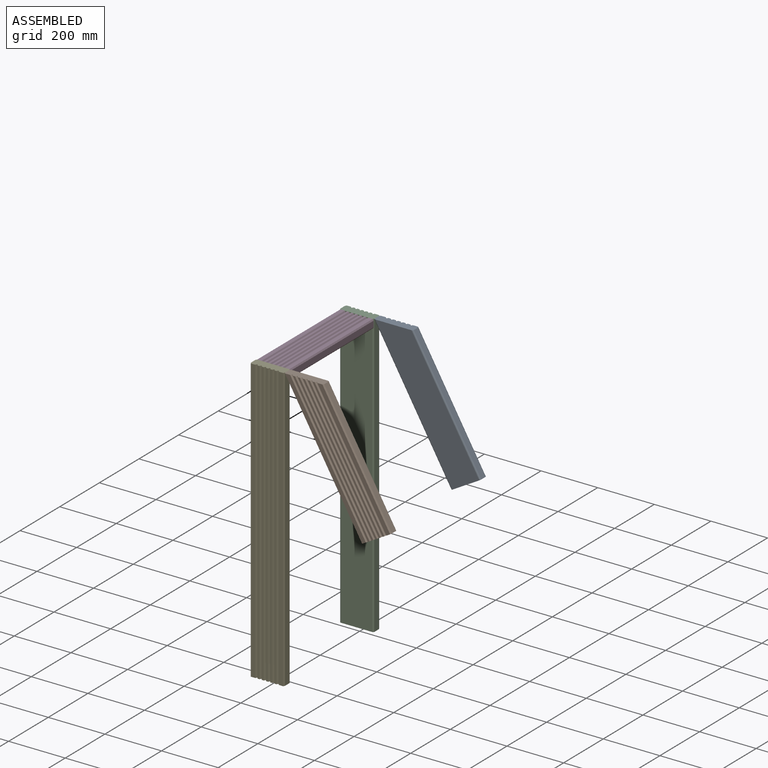
[diagram: assembled view]
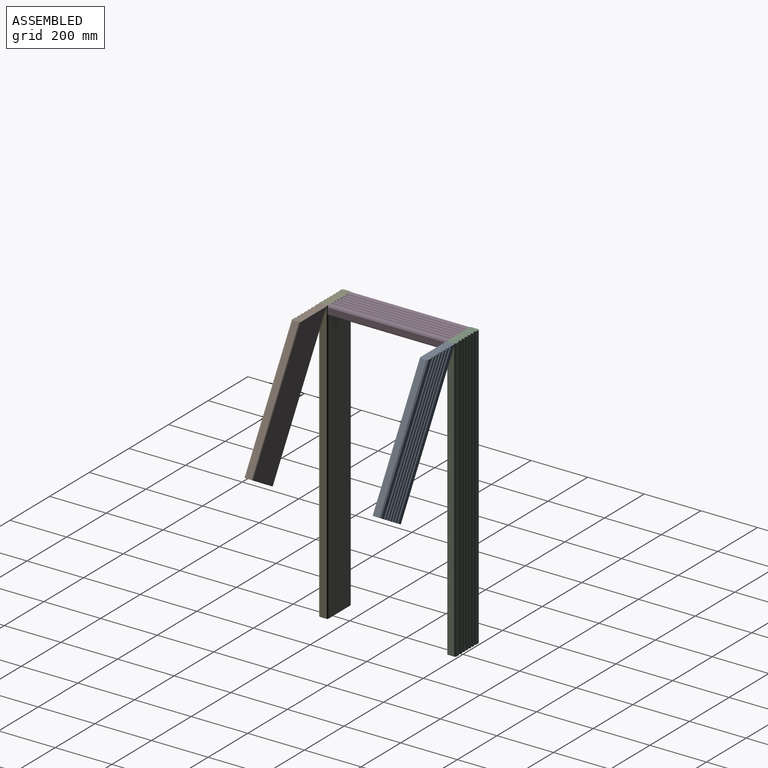
[diagram: assembled view, second angle]
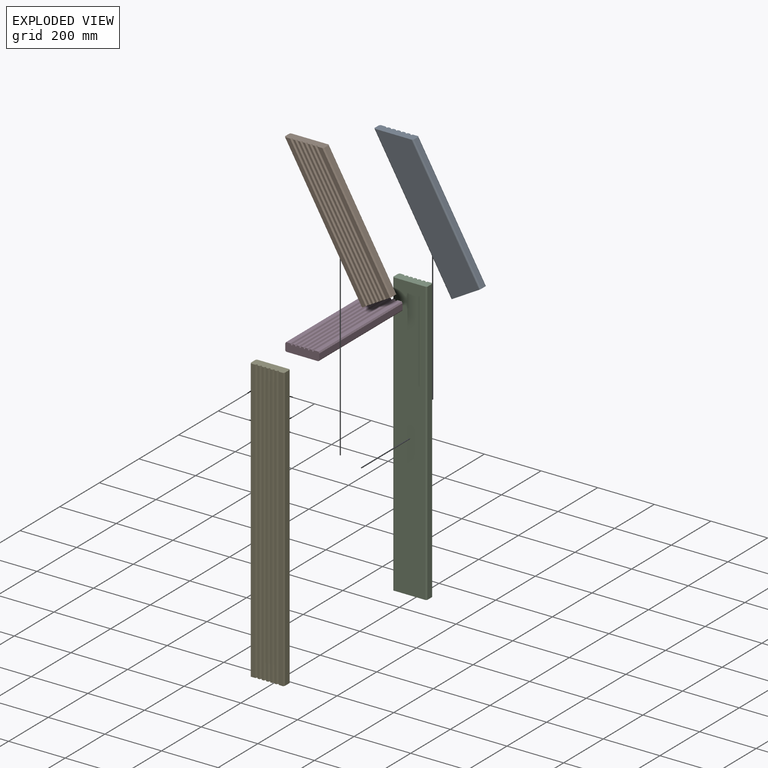
[diagram: exploded view]
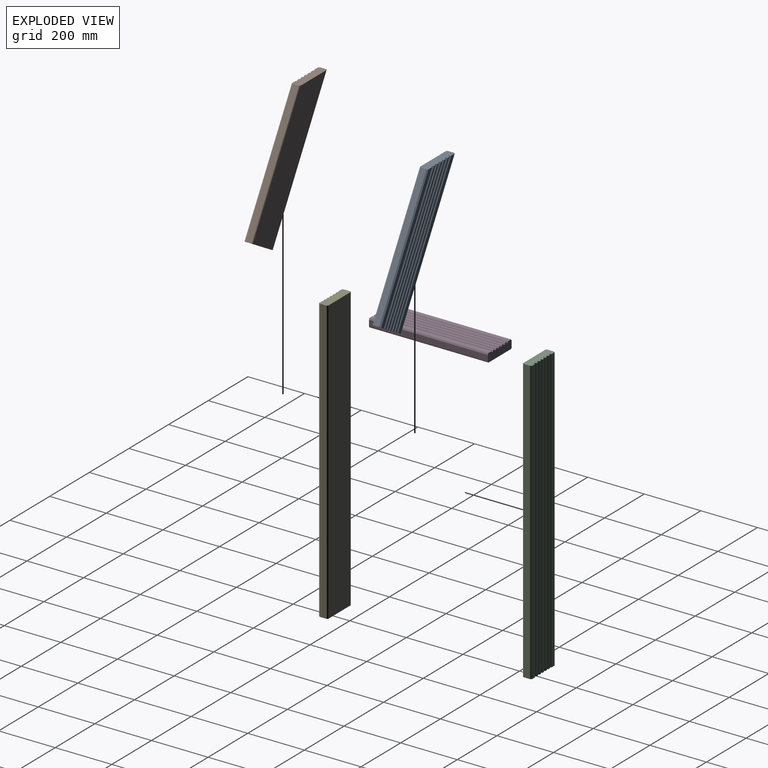
[diagram: exploded view, second angle]
ASSEMBLY  parts=5 mates=4
PART A: 34 faces, bbox 120x30.7x546.1 mm
  f0: plane 476.82x20.65mm, normal (1,0,0), area 9846.3mm2, adj f12,f13,f32,f33
  f1: cylinder r=2mm len=525.45mm, axis (0,0,-1), area 2196.8mm2, adj f2,f31,f32,f33
  f2: plane 526.78x4mm, normal (0.87,0.5,0), area 2430mm2, adj f1,f3,f32,f33
  f3: plane 530.78x6.92mm, normal (0,1,0), area 3657.6mm2, adj f2,f4,f32,f33
  f4: plane 532.11x4mm, normal (-0.87,0.5,0), area 2454.6mm2, adj f3,f5,f32,f33
  f5: cylinder r=2mm len=534.11mm, axis (0,0,-1), area 2233.1mm2, adj f4,f6,f32,f33
  f6: plane 535.44x4mm, normal (0.87,0.5,0), area 2470mm2, adj f5,f7,f32,f33
  f7: plane 544.43x15.57mm, normal (0,1,0), area 8407.8mm2, adj f6,f8,f32,f33
  f8: plane 546.1x5mm, normal (-0.87,0.5,0), area 3148.1mm2, adj f7,f9,f32,f33
  f9: plane 546.1x20.65mm, normal (-1,0,0), area 11277mm2, adj f8,f10,f32,f33
  f10: cylinder r=5mm len=546.1mm, axis (0,0,-1), area 4280.8mm2, adj f9,f11,f32,f33
  f11: plane 543.21x110mm, normal (0,-1,0), area 56260.5mm2, adj f10,f12,f32,f33
  f12: cylinder r=5mm len=479.7mm, axis (0,0,-1), area 3753.2mm2, adj f0,f11,f32,f33
  f13: plane 478.48x5mm, normal (0.87,0.5,0), area 2757.7mm2, adj f0,f14,f32,f33
  f14: plane 487.48x15.57mm, normal (0,1,0), area 7520.9mm2, adj f13,f15,f32,f33
  f15: plane 488.81x4mm, normal (-0.87,0.5,0), area 2254.6mm2, adj f14,f16,f32,f33
  f16: cylinder r=2mm len=490.81mm, axis (0,0,-1), area 2051.7mm2, adj f15,f17,f32,f33
  f17: plane 492.14x4mm, normal (0.87,0.5,0), area 2270mm2, adj f16,f18,f32,f33
  f18: plane 496.14x6.92mm, normal (0,1,0), area 3418mm2, adj f17,f19,f32,f33
  f19: plane 497.47x4mm, normal (-0.87,0.5,0), area 2294.6mm2, adj f18,f20,f32,f33
  f20: cylinder r=2mm len=499.47mm, axis (0,0,-1), area 2088mm2, adj f19,f21,f32,f33
  f21: plane 500.8x4mm, normal (0.87,0.5,0), area 2310mm2, adj f20,f22,f32,f33
  f22: plane 504.8x6.92mm, normal (0,1,0), area 3477.9mm2, adj f21,f23,f32,f33
  f23: plane 506.13x4mm, normal (-0.87,0.5,0), area 2334.6mm2, adj f22,f24,f32,f33
  f24: cylinder r=2mm len=508.13mm, axis (0,0,-1), area 2124.3mm2, adj f23,f25,f32,f33
  f25: plane 509.46x4mm, normal (0.87,0.5,0), area 2350mm2, adj f24,f26,f32,f33
  f26: plane 513.46x6.92mm, normal (0,1,0), area 3537.8mm2, adj f25,f27,f32,f33
  f27: plane 514.79x4mm, normal (-0.87,0.5,0), area 2374.6mm2, adj f26,f28,f32,f33
  f28: cylinder r=2mm len=516.79mm, axis (0,0,-1), area 2160.5mm2, adj f27,f29,f32,f33
  f29: plane 518.12x4mm, normal (0.87,0.5,0), area 2390mm2, adj f28,f30,f32,f33
  f30: plane 522.12x6.92mm, normal (0,1,0), area 3597.7mm2, adj f29,f31,f32,f33
  f31: plane 523.45x4mm, normal (-0.87,0.5,0), area 2414.6mm2, adj f1,f30,f32,f33
  f32: plane 120x30.65mm, normal (0,0,-1), area 3499.5mm2, adj f0,f1,f2,f3,f4,f5,f6,f7
  f33: plane 120x69.28mm, normal (0.5,0,0.87), area 4040.9mm2, adj f0,f1,f2,f3,f4,f5,f6,f7
PART B: 34 faces, bbox 120x30.7x546.1 mm
  f0: plane 476.82x20.65mm, normal (1,0,0), area 9846.3mm2, adj f12,f13,f32,f33
  f1: cylinder r=2mm len=525.45mm, axis (0,0,-1), area 2196.8mm2, adj f2,f31,f32,f33
  f2: plane 526.78x4mm, normal (0.87,-0.5,0), area 2430mm2, adj f1,f3,f32,f33
  f3: plane 530.78x6.92mm, normal (0,-1,0), area 3657.6mm2, adj f2,f4,f32,f33
  f4: plane 532.11x4mm, normal (-0.87,-0.5,0), area 2454.6mm2, adj f3,f5,f32,f33
  f5: cylinder r=2mm len=534.11mm, axis (0,0,-1), area 2233.1mm2, adj f4,f6,f32,f33
  f6: plane 535.44x4mm, normal (0.87,-0.5,0), area 2470mm2, adj f5,f7,f32,f33
  f7: plane 544.43x15.57mm, normal (0,-1,0), area 8407.8mm2, adj f6,f8,f32,f33
  f8: plane 546.1x5mm, normal (-0.87,-0.5,0), area 3148.1mm2, adj f7,f9,f32,f33
  f9: plane 546.1x20.65mm, normal (-1,0,0), area 11277mm2, adj f8,f10,f32,f33
  f10: cylinder r=5mm len=546.1mm, axis (0,0,-1), area 4280.8mm2, adj f9,f11,f32,f33
  f11: plane 543.21x110mm, normal (0,1,0), area 56260.5mm2, adj f10,f12,f32,f33
  f12: cylinder r=5mm len=479.7mm, axis (0,0,-1), area 3753.2mm2, adj f0,f11,f32,f33
  f13: plane 478.48x5mm, normal (0.87,-0.5,0), area 2757.7mm2, adj f0,f14,f32,f33
  f14: plane 487.48x15.57mm, normal (0,-1,0), area 7520.9mm2, adj f13,f15,f32,f33
  f15: plane 488.81x4mm, normal (-0.87,-0.5,0), area 2254.6mm2, adj f14,f16,f32,f33
  f16: cylinder r=2mm len=490.81mm, axis (0,0,-1), area 2051.7mm2, adj f15,f17,f32,f33
  f17: plane 492.14x4mm, normal (0.87,-0.5,0), area 2270mm2, adj f16,f18,f32,f33
  f18: plane 496.14x6.92mm, normal (0,-1,0), area 3418mm2, adj f17,f19,f32,f33
  f19: plane 497.47x4mm, normal (-0.87,-0.5,0), area 2294.6mm2, adj f18,f20,f32,f33
  f20: cylinder r=2mm len=499.47mm, axis (0,0,-1), area 2088mm2, adj f19,f21,f32,f33
  f21: plane 500.8x4mm, normal (0.87,-0.5,0), area 2310mm2, adj f20,f22,f32,f33
  f22: plane 504.8x6.92mm, normal (0,-1,0), area 3477.9mm2, adj f21,f23,f32,f33
  f23: plane 506.13x4mm, normal (-0.87,-0.5,0), area 2334.6mm2, adj f22,f24,f32,f33
  f24: cylinder r=2mm len=508.13mm, axis (0,0,-1), area 2124.3mm2, adj f23,f25,f32,f33
  f25: plane 509.46x4mm, normal (0.87,-0.5,0), area 2350mm2, adj f24,f26,f32,f33
  f26: plane 513.46x6.92mm, normal (0,-1,0), area 3537.8mm2, adj f25,f27,f32,f33
  f27: plane 514.79x4mm, normal (-0.87,-0.5,0), area 2374.6mm2, adj f26,f28,f32,f33
  f28: cylinder r=2mm len=516.79mm, axis (0,0,-1), area 2160.5mm2, adj f27,f29,f32,f33
  f29: plane 518.12x4mm, normal (0.87,-0.5,0), area 2390mm2, adj f28,f30,f32,f33
  f30: plane 522.12x6.92mm, normal (0,-1,0), area 3597.7mm2, adj f29,f31,f32,f33
  f31: plane 523.45x4mm, normal (-0.87,-0.5,0), area 2414.6mm2, adj f1,f30,f32,f33
  f32: plane 120x30.65mm, normal (0,0,-1), area 3499.5mm2, adj f0,f1,f2,f3,f4,f5,f6,f7
  f33: plane 120x69.28mm, normal (0.5,0,0.87), area 4040.9mm2, adj f0,f1,f2,f3,f4,f5,f6,f7
PART C: 34 faces, bbox 120x32x1000 mm
  f0: cylinder r=2mm len=1000mm, axis (0,0,-1), area 4188.8mm2, adj f1,f31,f32,f33
  f1: plane 1000x4mm, normal (0.87,0.5,0), area 4618.8mm2, adj f0,f2,f32,f33
  f2: plane 1000x6.92mm, normal (0,1,0), area 6917.1mm2, adj f1,f3,f32,f33
  f3: plane 1000x4mm, normal (-0.87,0.5,0), area 4618.8mm2, adj f2,f4,f32,f33
  f4: cylinder r=2mm len=1000mm, axis (0,0,-1), area 4188.8mm2, adj f3,f5,f32,f33
  f5: plane 1000x4mm, normal (0.87,0.5,0), area 4618.8mm2, adj f4,f6,f32,f33
  f6: plane 1000x15.57mm, normal (0,1,0), area 15571.8mm2, adj f5,f7,f32,f33
  f7: plane 1000x5mm, normal (-0.87,0.5,0), area 5773.5mm2, adj f6,f8,f32,f33
  f8: plane 1000x22mm, normal (-1,0,0), area 22000mm2, adj f7,f9,f32,f33
  f9: cylinder r=5mm len=1000mm, axis (0,0,-1), area 7854mm2, adj f8,f10,f32,f33
  f10: plane 1000x110mm, normal (0,-1,0), area 110000mm2, adj f9,f11,f32,f33
  f11: cylinder r=5mm len=1000mm, axis (0,0,-1), area 7854mm2, adj f10,f12,f32,f33
  f12: plane 1000x22mm, normal (1,0,0), area 22000mm2, adj f11,f13,f32,f33
  f13: plane 1000x5mm, normal (0.87,0.5,0), area 5773.5mm2, adj f12,f14,f32,f33
  f14: plane 1000x15.57mm, normal (0,1,0), area 15571.8mm2, adj f13,f15,f32,f33
  f15: plane 1000x4mm, normal (-0.87,0.5,0), area 4618.8mm2, adj f14,f16,f32,f33
  f16: cylinder r=2mm len=1000mm, axis (0,0,-1), area 4188.8mm2, adj f15,f17,f32,f33
  f17: plane 1000x4mm, normal (0.87,0.5,0), area 4618.8mm2, adj f16,f18,f32,f33
  f18: plane 1000x6.92mm, normal (0,1,0), area 6917.1mm2, adj f17,f19,f32,f33
  f19: plane 1000x4mm, normal (-0.87,0.5,0), area 4618.8mm2, adj f18,f20,f32,f33
  f20: cylinder r=2mm len=1000mm, axis (0,0,-1), area 4188.8mm2, adj f19,f21,f32,f33
  f21: plane 1000x4mm, normal (0.87,0.5,0), area 4618.8mm2, adj f20,f22,f32,f33
  f22: plane 1000x6.92mm, normal (0,1,0), area 6917.1mm2, adj f21,f23,f32,f33
  f23: plane 1000x4mm, normal (-0.87,0.5,0), area 4618.8mm2, adj f22,f24,f32,f33
  f24: cylinder r=2mm len=1000mm, axis (0,0,-1), area 4188.8mm2, adj f23,f25,f32,f33
  f25: plane 1000x4mm, normal (0.87,0.5,0), area 4618.8mm2, adj f24,f26,f32,f33
  f26: plane 1000x6.92mm, normal (0,1,0), area 6917.1mm2, adj f25,f27,f32,f33
  f27: plane 1000x4mm, normal (-0.87,0.5,0), area 4618.8mm2, adj f26,f28,f32,f33
  f28: cylinder r=2mm len=1000mm, axis (0,0,-1), area 4188.8mm2, adj f27,f29,f32,f33
  f29: plane 1000x4mm, normal (0.87,0.5,0), area 4618.8mm2, adj f28,f30,f32,f33
  f30: plane 1000x6.92mm, normal (0,1,0), area 6917.1mm2, adj f29,f31,f32,f33
  f31: plane 1000x4mm, normal (-0.87,0.5,0), area 4618.8mm2, adj f0,f30,f32,f33
  f32: plane 120x32mm, normal (0,0,1), area 3661.5mm2, adj f0,f1,f2,f3,f4,f5,f6,f7
  f33: plane 120x32mm, normal (0,0,-1), area 3661.5mm2, adj f0,f1,f2,f3,f4,f5,f6,f7
PART D: 34 faces, bbox 120x30.7x420 mm
  f0: cylinder r=2mm len=420mm, axis (0,0,-1), area 1759.3mm2, adj f1,f31,f32,f33
  f1: plane 420x4mm, normal (0.87,0.5,0), area 1939.9mm2, adj f0,f2,f32,f33
  f2: plane 420x6.92mm, normal (0,1,0), area 2905.2mm2, adj f1,f3,f32,f33
  f3: plane 420x4mm, normal (-0.87,0.5,0), area 1939.9mm2, adj f2,f4,f32,f33
  f4: cylinder r=2mm len=420mm, axis (0,0,-1), area 1759.3mm2, adj f3,f5,f32,f33
  f5: plane 420x4mm, normal (0.87,0.5,0), area 1939.9mm2, adj f4,f6,f32,f33
  f6: plane 420x15.57mm, normal (0,1,0), area 6540.2mm2, adj f5,f7,f32,f33
  f7: plane 420x5mm, normal (-0.87,0.5,0), area 2424.9mm2, adj f6,f8,f32,f33
  f8: plane 420x20.65mm, normal (-1,0,0), area 8673mm2, adj f7,f9,f32,f33
  f9: cylinder r=5mm len=420mm, axis (0,0,-1), area 3298.7mm2, adj f8,f10,f32,f33
  f10: plane 420x110mm, normal (0,-1,0), area 46200mm2, adj f9,f11,f32,f33
  f11: cylinder r=5mm len=420mm, axis (0,0,-1), area 3298.7mm2, adj f10,f12,f32,f33
  f12: plane 420x20.65mm, normal (1,0,0), area 8673mm2, adj f11,f13,f32,f33
  f13: plane 420x5mm, normal (0.87,0.5,0), area 2424.9mm2, adj f12,f14,f32,f33
  f14: plane 420x15.57mm, normal (0,1,0), area 6540.2mm2, adj f13,f15,f32,f33
  f15: plane 420x4mm, normal (-0.87,0.5,0), area 1939.9mm2, adj f14,f16,f32,f33
  f16: cylinder r=2mm len=420mm, axis (0,0,-1), area 1759.3mm2, adj f15,f17,f32,f33
  f17: plane 420x4mm, normal (0.87,0.5,0), area 1939.9mm2, adj f16,f18,f32,f33
  f18: plane 420x6.92mm, normal (0,1,0), area 2905.2mm2, adj f17,f19,f32,f33
  f19: plane 420x4mm, normal (-0.87,0.5,0), area 1939.9mm2, adj f18,f20,f32,f33
  f20: cylinder r=2mm len=420mm, axis (0,0,-1), area 1759.3mm2, adj f19,f21,f32,f33
  f21: plane 420x4mm, normal (0.87,0.5,0), area 1939.9mm2, adj f20,f22,f32,f33
  f22: plane 420x6.92mm, normal (0,1,0), area 2905.2mm2, adj f21,f23,f32,f33
  f23: plane 420x4mm, normal (-0.87,0.5,0), area 1939.9mm2, adj f22,f24,f32,f33
  f24: cylinder r=2mm len=420mm, axis (0,0,-1), area 1759.3mm2, adj f23,f25,f32,f33
  f25: plane 420x4mm, normal (0.87,0.5,0), area 1939.9mm2, adj f24,f26,f32,f33
  f26: plane 420x6.92mm, normal (0,1,0), area 2905.2mm2, adj f25,f27,f32,f33
  f27: plane 420x4mm, normal (-0.87,0.5,0), area 1939.9mm2, adj f26,f28,f32,f33
  f28: cylinder r=2mm len=420mm, axis (0,0,-1), area 1759.3mm2, adj f27,f29,f32,f33
  f29: plane 420x4mm, normal (0.87,0.5,0), area 1939.9mm2, adj f28,f30,f32,f33
  f30: plane 420x6.92mm, normal (0,1,0), area 2905.2mm2, adj f29,f31,f32,f33
  f31: plane 420x4mm, normal (-0.87,0.5,0), area 1939.9mm2, adj f0,f30,f32,f33
  f32: plane 120x30.65mm, normal (0,0,1), area 3499.5mm2, adj f0,f1,f2,f3,f4,f5,f6,f7
  f33: plane 120x30.65mm, normal (0,0,-1), area 3499.5mm2, adj f0,f1,f2,f3,f4,f5,f6,f7
PART E: same geometry as C
PLACE A rot(axis=(0,-1,0),30deg) t=(248.49,-0.68,293.53)mm
PLACE B rot(axis=(0,-1,0),30deg) t=(248.49,-422.02,293.53)mm
PLACE C at identity fixed
PLACE D rot(axis=(1,0,0),90deg) t=(0,-226,484)mm
PLACE E rot(axis=(0,0,1),180deg) t=(0,-452,0)mm
MATE fastened C.f32 <-> A.f33  axis (0,0,1) through (60,0,500)mm
MATE fastened E.f10 <-> D.f32  axis (0,1,0) through (0,-436,500)mm
MATE fastened D.f33 <-> C.f10  axis (0,1,0) through (0,-16,500)mm
MATE fastened E.f32 <-> B.f33  axis (0,0,1) through (60,-452,500)mm
